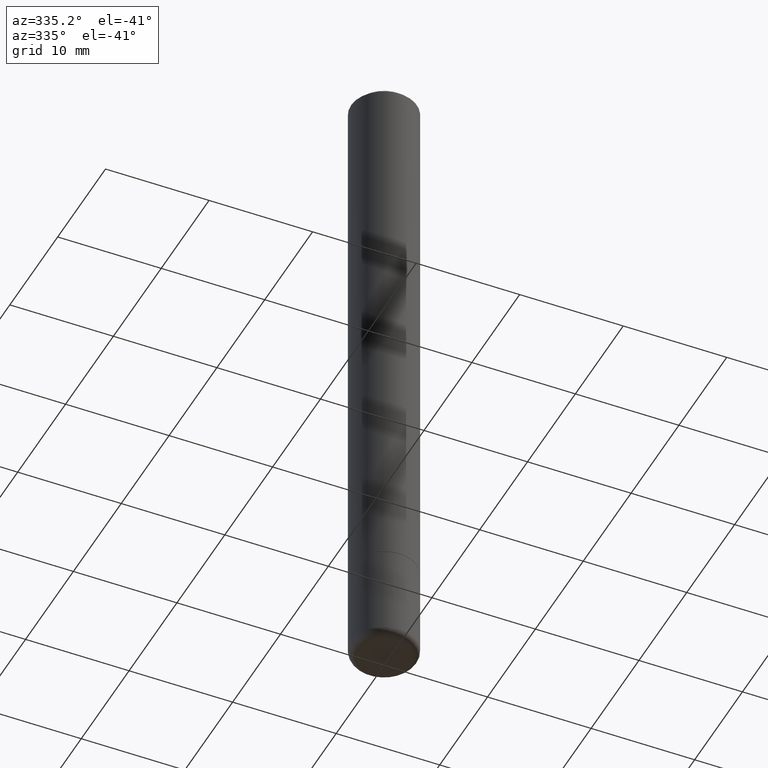
[diagram: clean part render]
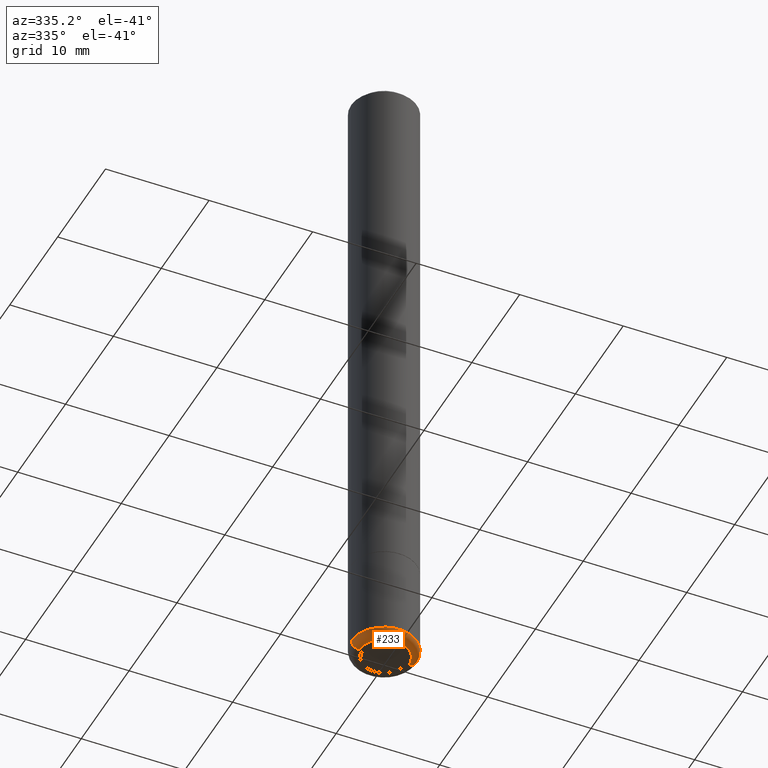
[diagram: same view with one face highlighted and labeled with its STEP entity id]
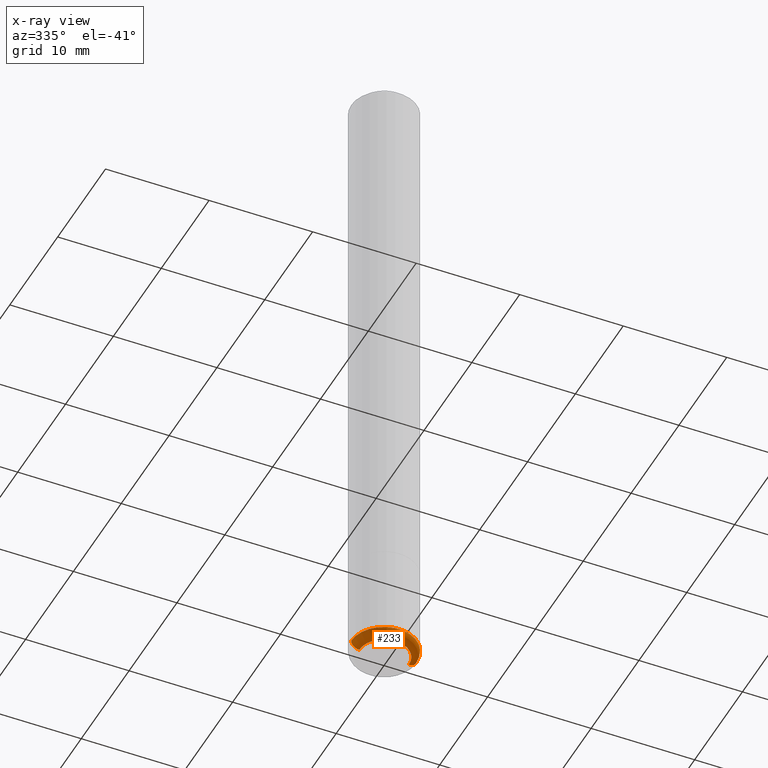
[diagram: x-ray of the same camera — body ghosted, the highlighted face saturated]
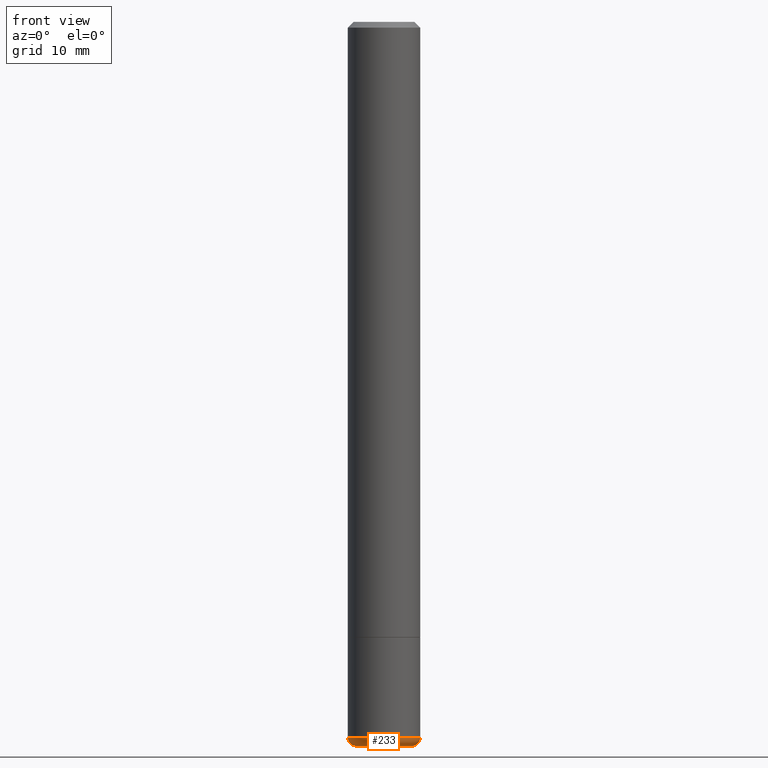
[diagram: same view with one face highlighted and labeled with its STEP entity id]
A machine part, auxiliary view. The second image highlights one B-rep face of the part: STEP entity #233.
The next image is the same camera in x-ray: the body ghosted, the highlighted face saturated — about 0% of this face is hidden behind the body in this view.
A second angle (front view) of the same face is appended — the face is thin or edge-on in the first view.
In plain terms, the highlighted toroidal blend (fillet) surface has major radius 2.413 mm and minor (blend) radius 0.762 mm.
Its self-contained STEP definition (entity closure, byte-faithful):
#2 = DIRECTION ( 'NONE',  ( -6.982962677686266711E-15, -1.000000000000000000, 3.491481338843145583E-15 ) ) ;
#50 = AXIS2_PLACEMENT_3D ( 'NONE', #273, #197, #348 ) ;
#59 = EDGE_CURVE ( 'NONE', #95, #141, #201, .T. ) ;
#60 = EDGE_CURVE ( 'NONE', #141, #398, #111, .T. ) ;
#70 = ORIENTED_EDGE ( 'NONE', *, *, #114, .T. ) ;
#79 = AXIS2_PLACEMENT_3D ( 'NONE', #97, #387, #276 ) ;
#95 = VERTEX_POINT ( 'NONE', #227 ) ;
#97 = CARTESIAN_POINT ( 'NONE',  ( 6.040310744756052718E-29, -8.623962895289896214E-15, -2.470001142308074993 ) ) ;
#100 = TOROIDAL_SURFACE ( 'NONE', #79, 0.09500000000000018152, 0.02999999999999982542 ) ;
#111 = CIRCLE ( 'NONE', #50, 0.1250000000000000278 ) ;
#114 = EDGE_CURVE ( 'NONE', #301, #398, #401, .T. ) ;
#124 = FACE_OUTER_BOUND ( 'NONE', #257, .T. ) ;
#141 = VERTEX_POINT ( 'NONE', #456 ) ;
#179 = DIRECTION ( 'NONE',  ( -2.445468806185136597E-29, 3.491481338843145583E-15, 1.000000000000000000 ) ) ;
#195 = DIRECTION ( 'NONE',  ( 7.105427357601001859E-15, 1.000000000000000000, -3.491481338843145583E-15 ) ) ;
#197 = DIRECTION ( 'NONE',  ( -2.445468806185136597E-29, 3.491481338843145583E-15, 1.000000000000000000 ) ) ;
#201 = CIRCLE ( 'NONE', #270, 0.02999999999999981501 ) ;
#215 = CARTESIAN_POINT ( 'NONE',  ( 6.113672015462842613E-29, -8.728703347107864943E-15, -2.500000000000000000 ) ) ;
#227 = CARTESIAN_POINT ( 'NONE',  ( -0.09473820393504912840, -7.895666198323776938E-15, -2.500000000000000000 ) ) ;
#233 = ADVANCED_FACE ( 'NONE', ( #124 ), #100, .T. ) ;
#236 = CARTESIAN_POINT ( 'NONE',  ( 0.09473820393504912840, -9.390256689337342116E-15, -2.500000000000000000 ) ) ;
#253 = ORIENTED_EDGE ( 'NONE', *, *, #60, .F. ) ;
#255 = ORIENTED_EDGE ( 'NONE', *, *, #59, .F. ) ;
#257 = EDGE_LOOP ( 'NONE', ( #255, #397, #70, #253 ) ) ;
#270 = AXIS2_PLACEMENT_3D ( 'NONE', #271, #195, #272 ) ;
#271 = CARTESIAN_POINT ( 'NONE',  ( -0.09500000000000018152, -7.948947296317799649E-15, -2.470001142308074993 ) ) ;
#272 = DIRECTION ( 'NONE',  ( -1.000000000000000000, 7.105427357601001859E-15, 0.000000000000000000 ) ) ;
#273 = CARTESIAN_POINT ( 'NONE',  ( 6.040310744756052718E-29, -8.623962895289896214E-15, -2.470001142308074993 ) ) ;
#276 = DIRECTION ( 'NONE',  ( 1.000000000000000000, -6.982962677686262766E-15, 4.883557194083111780E-29 ) ) ;
#301 = VERTEX_POINT ( 'NONE', #236 ) ;
#308 = CARTESIAN_POINT ( 'NONE',  ( 0.09500000000000018152, -9.287344349670094392E-15, -2.470001142308074993 ) ) ;
#341 = AXIS2_PLACEMENT_3D ( 'NONE', #215, #179, #365 ) ;
#348 = DIRECTION ( 'NONE',  ( 1.000000000000000000, -6.982962677686261189E-15, 0.000000000000000000 ) ) ;
#365 = DIRECTION ( 'NONE',  ( 1.000000000000000000, -6.982962677686257244E-15, 0.000000000000000000 ) ) ;
#370 = EDGE_CURVE ( 'NONE', #95, #301, #391, .T. ) ;
#376 = DIRECTION ( 'NONE',  ( 1.000000000000000000, -6.982962677686246200E-15, 0.000000000000000000 ) ) ;
#387 = DIRECTION ( 'NONE',  ( -2.445468806185136597E-29, 3.491481338843145583E-15, 1.000000000000000000 ) ) ;
#391 = CIRCLE ( 'NONE', #341, 0.09473820393504912840 ) ;
#397 = ORIENTED_EDGE ( 'NONE', *, *, #370, .T. ) ;
#398 = VERTEX_POINT ( 'NONE', #490 ) ;
#401 = CIRCLE ( 'NONE', #402, 0.02999999999999981501 ) ;
#402 = AXIS2_PLACEMENT_3D ( 'NONE', #308, #2, #376 ) ;
#456 = CARTESIAN_POINT ( 'NONE',  ( -0.1250000000000000555, -7.133501950465663898E-15, -2.470001142308074993 ) ) ;
#490 = CARTESIAN_POINT ( 'NONE',  ( 0.1250000000000000278, -9.496833230000679553E-15, -2.470001142308074993 ) ) ;